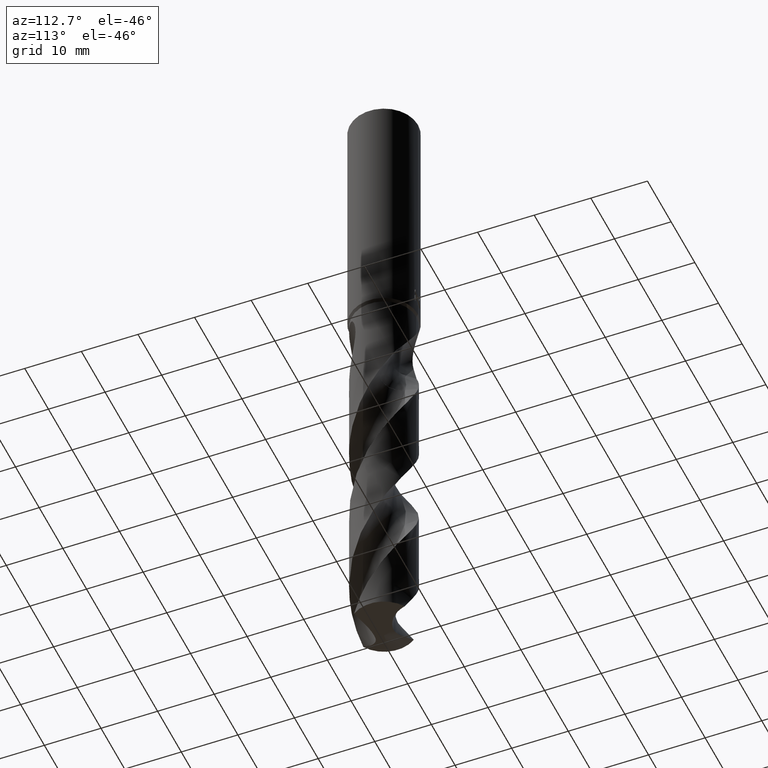
[diagram: clean part render]
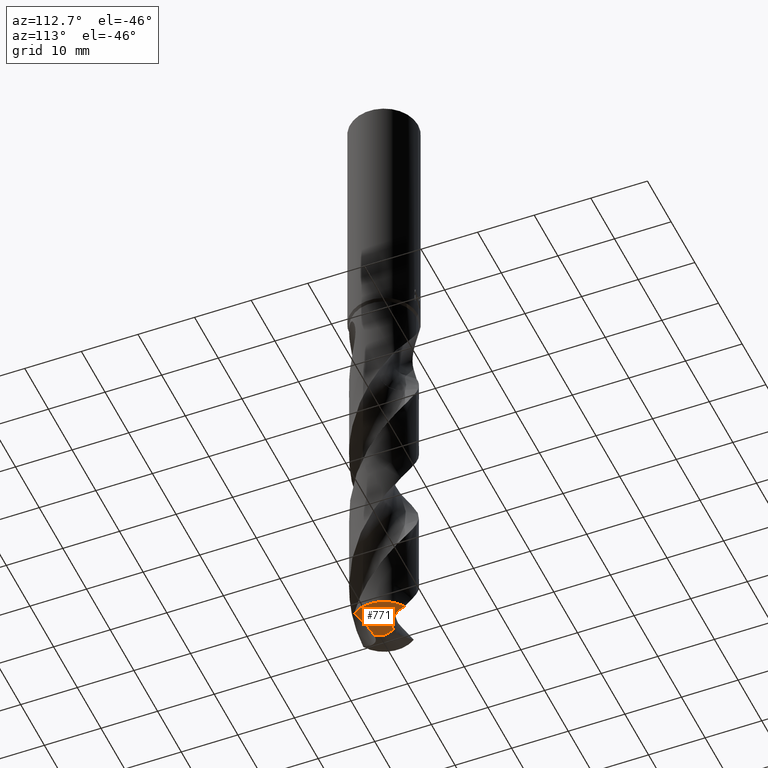
[diagram: same view with one face highlighted and labeled with its STEP entity id]
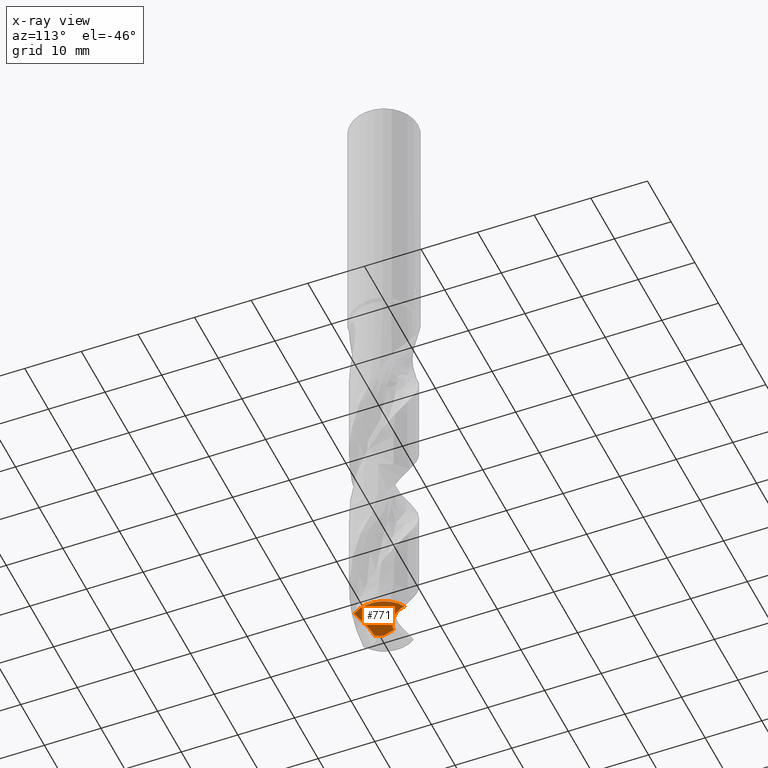
[diagram: x-ray of the same camera — body ghosted, the highlighted face saturated]
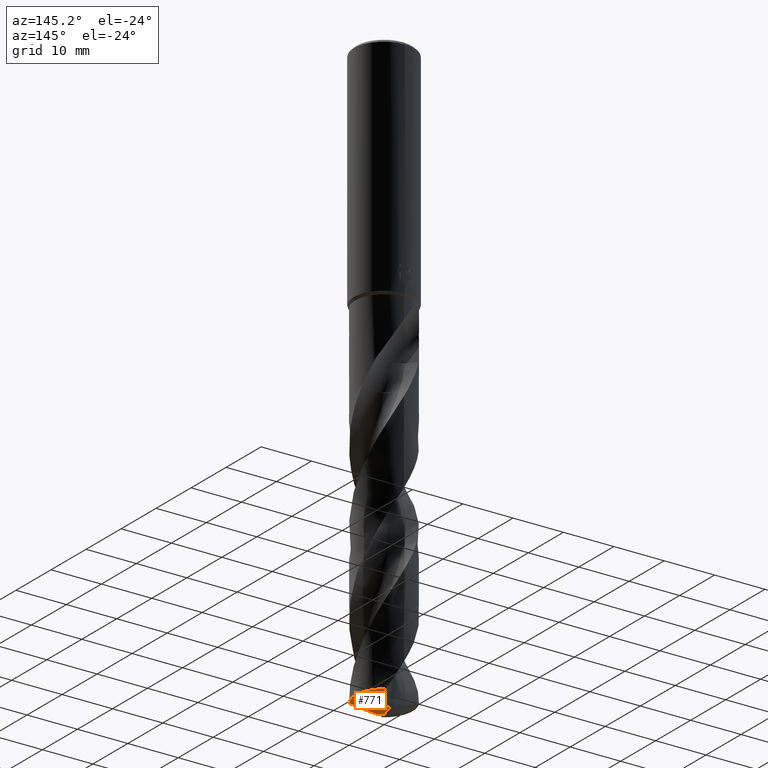
[diagram: same view with one face highlighted and labeled with its STEP entity id]
A machine part, auxiliary view. The second image highlights one B-rep face of the part: STEP entity #771.
The next image is the same camera in x-ray: the body ghosted, the highlighted face saturated — about 0% of this face is hidden behind the body in this view.
A second angle (auxiliary view) of the same face is appended — the face is thin or edge-on in the first view.
In plain terms, the highlighted conical surface has half-angle 70 deg.
Its self-contained STEP definition (entity closure, byte-faithful):
#301=VERTEX_POINT('',#834);
#349=VERTEX_POINT('',#884);
#391=VERTEX_POINT('',#930);
#429=VERTEX_POINT('',#970);
#433=VERTEX_POINT('',#975);
#459=EDGE_CURVE('',#349,#429,#1004,.T.);
#567=EDGE_CURVE('',#433,#641,#1121,.T.);
#641=VERTEX_POINT('',#1206);
#671=EDGE_CURVE('',#641,#391,#1242,.T.);
#735=EDGE_CURVE('',#433,#349,#1309,.T.);
#757=EDGE_CURVE('',#391,#301,#1332,.T.);
#771=ADVANCED_FACE('',(#1348),#1349,.T.);
#775=EDGE_CURVE('',#301,#429,#1354,.T.);
#834=CARTESIAN_POINT('',(2.63866897759648,-2.4395400530556,-116.69203815204));
#884=CARTESIAN_POINT('',(0.0,0.0,-118.0));
#930=CARTESIAN_POINT('',(4.61555786480179,-3.34464132556337,-115.925369664683));
#970=CARTESIAN_POINT('',(8.30679653228367E-015,-1.71522771440012,-117.37570816697));
#975=CARTESIAN_POINT('',(-8.30679653228368E-015,1.71522771440012,-117.37570816697));
#1004=LINE('',#3227,#3228);
#1121=B_SPLINE_CURVE_WITH_KNOTS('',3,(#5773,#5774,#5775,#5776,#5777,#5778,#5779,#5780,#5781,#5782,#5783,#5784,#5785,#5786,#5787,#5788,#5789,#5790,#5791,#5792),.UNSPECIFIED.,.F.,.F.,(4,2,2,2,2,2,2,2,2,4),(0.0,1.79538223059602,2.6169113913568,3.95497352019238,5.14415228662445,6.49664279616013,7.96552243092837,9.62379448089827,11.4598399672948,13.409700815143),.UNSPECIFIED.);
#1206=CARTESIAN_POINT('',(2.9405006819118,4.88297611500161,-115.925369664683));
#1242=CIRCLE('',#7462,5.7);
#1309=LINE('',#8314,#8315);
#1332=B_SPLINE_CURVE_WITH_KNOTS('',3,(#8362,#8363,#8364,#8365),.UNSPECIFIED.,.F.,.F.,(4,4),(0.0,4.93622342913608),.UNSPECIFIED.);
#1348=FACE_OUTER_BOUND('',#8395,.T.);
#1349=CONICAL_SURFACE('',#8396,2.85,1.22173047639603);
#1354=B_SPLINE_CURVE_WITH_KNOTS('',3,(#8625,#8626,#8627,#8628,#8629,#8630,#8631,#8632,#8633,#8634,#8635,#8636,#8637,#8638,#8639,#8640,#8641,#8642,#8643,#8644),.UNSPECIFIED.,.F.,.F.,(4,2,2,2,2,2,2,2,2,4),(0.0,1.79538223059602,2.6169113913568,3.9549735201924,5.14415228662173,6.49664279517238,7.96552242801871,9.62379447559492,11.4598399595263,13.4097008046728),.UNSPECIFIED.);
#3227=CARTESIAN_POINT('',(3.49012810839378E-016,-2.85,-116.962684832341));
#3228=VECTOR('',#9040,1.0);
#5773=CARTESIAN_POINT('',(-2.63866897759622,2.43954005305572,-116.69203815204));
#5774=CARTESIAN_POINT('',(-2.1450003663508,2.16628885198065,-116.89148825841));
#5775=CARTESIAN_POINT('',(-1.64738520549109,1.98661394382982,-117.067487063555));
#5776=CARTESIAN_POINT('',(-1.00528919092268,1.82491955047105,-117.243435551187));
#5777=CARTESIAN_POINT('',(-0.795130077702277,1.78338249527071,-117.292725588195));
#5778=CARTESIAN_POINT('',(-0.240734102464413,1.70972529666953,-117.381885105511));
#5779=CARTESIAN_POINT('',(0.0957989200163625,1.69798597568373,-117.392297095062));
#5780=CARTESIAN_POINT('',(0.747632709430043,1.78396459820164,-117.303791964767));
#5781=CARTESIAN_POINT('',(1.03733805924145,1.86958560390647,-117.223791047467));
#5782=CARTESIAN_POINT('',(1.609852109102,2.14913363824176,-117.024710989916));
#5783=CARTESIAN_POINT('',(1.89716570828061,2.36126267076661,-116.897554691701));
#5784=CARTESIAN_POINT('',(2.41668741757747,2.94308994520859,-116.613956482115));
#5785=CARTESIAN_POINT('',(2.62028925730426,3.30037299150154,-116.466876707009));
#5786=CARTESIAN_POINT('',(2.90393165651353,4.1241365161432,-116.164872277622));
#5787=CARTESIAN_POINT('',(2.96248858530541,4.59129176813548,-116.013483714359));
#5788=CARTESIAN_POINT('',(2.90210726586764,5.57885883263946,-115.71355112916));
#5789=CARTESIAN_POINT('',(2.76420283193359,6.09114767032925,-115.569431786858));
#5790=CARTESIAN_POINT('',(2.29232416772506,7.07237659414968,-115.298119840541));
#5791=CARTESIAN_POINT('',(1.94981180169761,7.53046511387672,-115.17423750988));
#5792=CARTESIAN_POINT('',(1.53099702777092,7.91429391044816,-115.066029642884));
#7462=AXIS2_PLACEMENT_3D('',#9348,#9349,#9350);
#8314=CARTESIAN_POINT('',(-3.49012810839378E-016,2.85,-116.962684832341));
#8315=VECTOR('',#9389,1.0);
#8362=CARTESIAN_POINT('',(6.99906036853806,-3.99914415313573,-115.066029642884));
#8363=CARTESIAN_POINT('',(5.4693695849841,-3.71401935790672,-115.600928528765));
#8364=CARTESIAN_POINT('',(4.00247005754562,-3.19440716474099,-116.141043495087));
#8365=CARTESIAN_POINT('',(2.63866897765437,-2.43954005297625,-116.692038152044));
#8395=EDGE_LOOP('',(#9421,#9422,#9423,#9424,#9425,#9426));
#8396=AXIS2_PLACEMENT_3D('',#9427,#9428,#9429);
#8625=CARTESIAN_POINT('',(2.63866897759622,-2.43954005305572,-116.69203815204));
#8626=CARTESIAN_POINT('',(2.1450003663508,-2.16628885198065,-116.89148825841));
#8627=CARTESIAN_POINT('',(1.64738520549109,-1.98661394382982,-117.067487063555));
#8628=CARTESIAN_POINT('',(1.00528919092268,-1.82491955047105,-117.243435551187));
#8629=CARTESIAN_POINT('',(0.795130077702276,-1.78338249527071,-117.292725588195));
#8630=CARTESIAN_POINT('',(0.240734102464413,-1.70972529666953,-117.381885105511));
#8631=CARTESIAN_POINT('',(-0.0957989200163627,-1.69798597568373,-117.392297095062));
#8632=CARTESIAN_POINT('',(-0.747632709429333,-1.78396459820154,-117.303791964767));
#8633=CARTESIAN_POINT('',(-1.03733805923917,-1.86958560390532,-117.223791047468));
#8634=CARTESIAN_POINT('',(-1.6098521088835,-2.14913363813501,-117.024710989993));
#8635=CARTESIAN_POINT('',(-1.89716570810643,-2.36126267056931,-116.897554691797));
#8636=CARTESIAN_POINT('',(-2.41668741762561,-2.94308994526495,-116.613956482088));
#8637=CARTESIAN_POINT('',(-2.62028925736554,-3.30037299162546,-116.46687670696));
#8638=CARTESIAN_POINT('',(-2.90393165652229,-4.12413651622968,-116.164872277595));
#8639=CARTESIAN_POINT('',(-2.9624885853062,-4.59129176817157,-116.013483714348));
#8640=CARTESIAN_POINT('',(-2.90210726586041,-5.57885883270305,-115.713551129141));
#8641=CARTESIAN_POINT('',(-2.76420283188681,-6.09114767045277,-115.569431786823));
#8642=CARTESIAN_POINT('',(-2.29232416770312,-7.07237659416757,-115.298119840537));
#8643=CARTESIAN_POINT('',(-1.94981180170097,-7.53046511387364,-115.174237509881));
#8644=CARTESIAN_POINT('',(-1.53099702777092,-7.91429391044815,-115.066029642884));
#9040=DIRECTION('',(1.15075355405442E-016,-0.939692620785909,0.342020143325668));
#9348=CARTESIAN_POINT('',(0.0,0.0,-115.925369664683));
#9349=DIRECTION('',(0.0,0.0,-1.0));
#9350=DIRECTION('',(0.0,1.0,0.0));
#9389=DIRECTION('',(1.15075355405443E-016,-0.939692620785909,-0.342020143325668));
#9421=ORIENTED_EDGE('',*,*,#459,.F.);
#9422=ORIENTED_EDGE('',*,*,#735,.F.);
#9423=ORIENTED_EDGE('',*,*,#567,.T.);
#9424=ORIENTED_EDGE('',*,*,#671,.T.);
#9425=ORIENTED_EDGE('',*,*,#757,.T.);
#9426=ORIENTED_EDGE('',*,*,#775,.T.);
#9427=CARTESIAN_POINT('',(0.0,0.0,-116.962684832341));
#9428=DIRECTION('',(-0.0,-0.0,1.0));
#9429=DIRECTION('',(0.0,1.0,0.0));